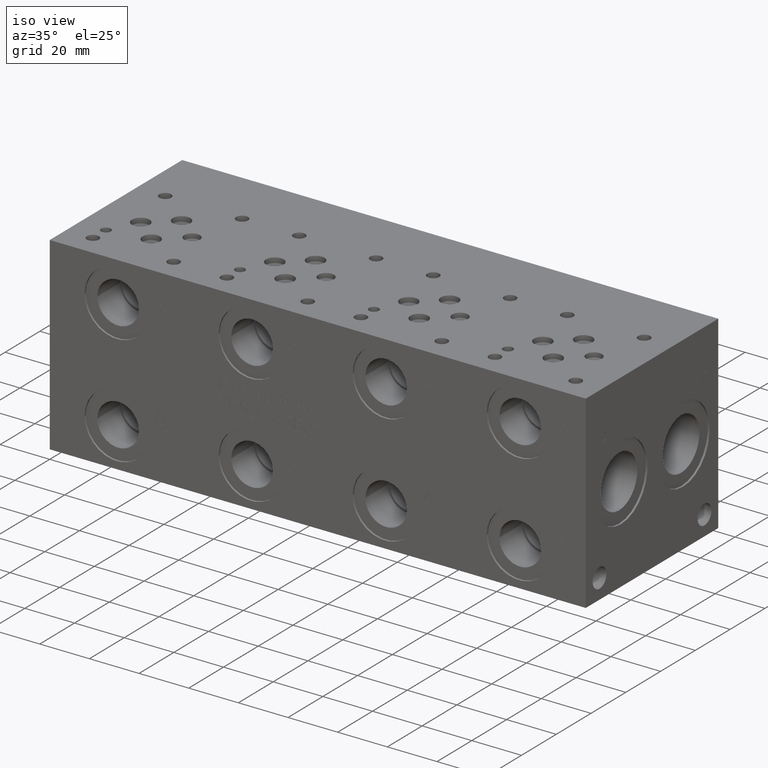
[diagram: clean part render]
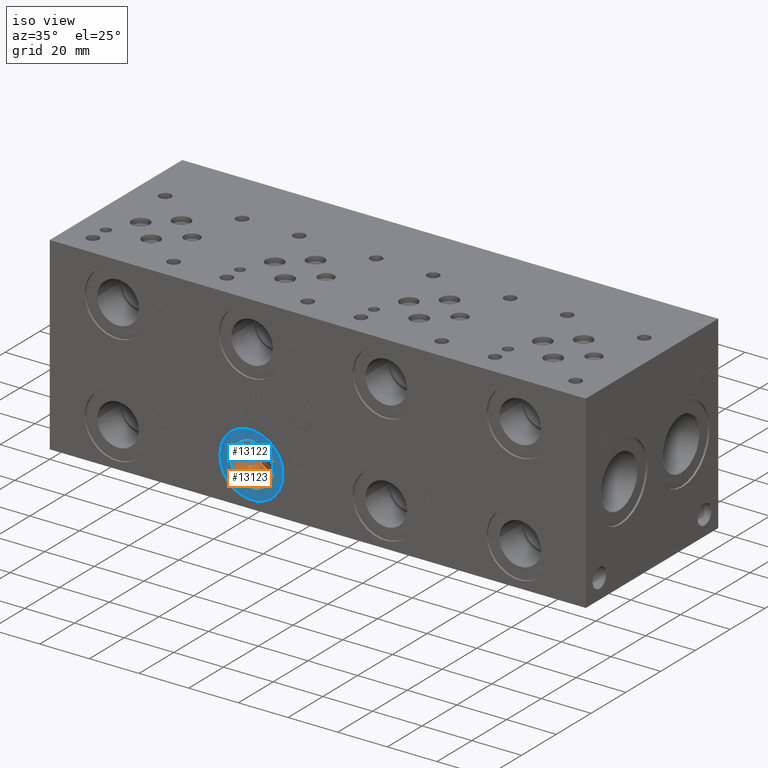
[diagram: same view with the hole feature highlighted: cylindrical wall and planar end face, labeled with their STEP entity ids]
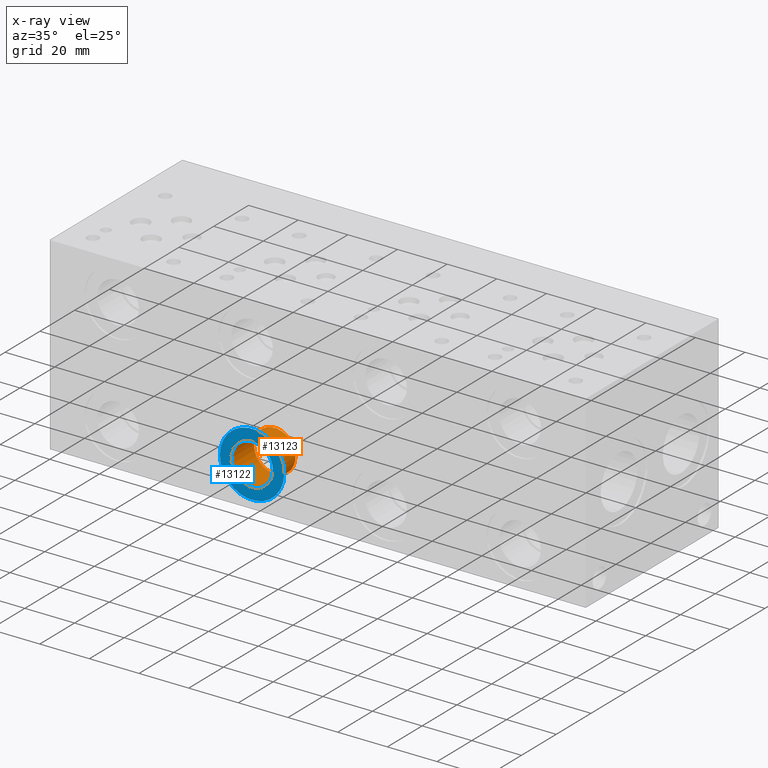
[diagram: x-ray of the same camera — body ghosted, the hole faces saturated]
A machine part, iso view. The highlighted faces form one hole feature of diameter 16.764 mm: the cylindrical wall (entity #13123, orange) and its adjacent planar end face (entity #13122, blue) — they share a circular edge in the B-rep.
The next image is the same camera in x-ray (body ghosted, the hole faces saturated) — the bore reads through the body.
Wall:
#83=CYLINDRICAL_SURFACE('',#13898,8.38200000000001);
#346=CIRCLE('',#13897,8.38200000000001);
#347=CIRCLE('',#13899,8.38200000000001);
#1584=FACE_OUTER_BOUND('',#2409,.T.);
#2409=EDGE_LOOP('',(#11210,#11211,#11212,#11213));
#3774=LINE('',#21978,#5056);
#5056=VECTOR('',#16610,8.38200000000001);
#6215=VERTEX_POINT('',#21974);
#6216=VERTEX_POINT('',#21977);
#7915=EDGE_CURVE('',#6215,#6215,#346,.T.);
#7916=EDGE_CURVE('',#6215,#6216,#3774,.T.);
#7917=EDGE_CURVE('',#6216,#6216,#347,.T.);
#11210=ORIENTED_EDGE('',*,*,#7915,.F.);
#11211=ORIENTED_EDGE('',*,*,#7916,.T.);
#11212=ORIENTED_EDGE('',*,*,#7917,.T.);
#11213=ORIENTED_EDGE('',*,*,#7916,.F.);
#13123=ADVANCED_FACE('',(#1584),#83,.F.);
#13897=AXIS2_PLACEMENT_3D('',#21975,#16606,#16607);
#13898=AXIS2_PLACEMENT_3D('',#21976,#16608,#16609);
#13899=AXIS2_PLACEMENT_3D('',#21979,#16611,#16612);
#16606=DIRECTION('center_axis',(0.,1.,0.));
#16607=DIRECTION('ref_axis',(1.,0.,0.));
#16608=DIRECTION('center_axis',(0.,1.,0.));
#16609=DIRECTION('ref_axis',(1.,0.,0.));
#16610=DIRECTION('',(0.,1.,0.));
#16611=DIRECTION('center_axis',(0.,1.,0.));
#16612=DIRECTION('ref_axis',(1.,0.,0.));
#21974=CARTESIAN_POINT('',(72.5678,0.7874,15.875));
#21975=CARTESIAN_POINT('Origin',(80.9498,0.7874,15.875));
#21976=CARTESIAN_POINT('Origin',(80.9498,7.2771,15.875));
#21977=CARTESIAN_POINT('',(72.5678,13.7668,15.875));
#21978=CARTESIAN_POINT('',(72.5678,7.2771,15.875));
#21979=CARTESIAN_POINT('Origin',(80.9498,13.7668,15.875));
End face:
#345=CIRCLE('',#13895,12.9667);
#346=CIRCLE('',#13897,8.38200000000001);
#518=FACE_BOUND('',#2408,.T.);
#1583=FACE_OUTER_BOUND('',#2407,.T.);
#2407=EDGE_LOOP('',(#11208));
#2408=EDGE_LOOP('',(#11209));
#6214=VERTEX_POINT('',#21970);
#6215=VERTEX_POINT('',#21974);
#7914=EDGE_CURVE('',#6214,#6214,#345,.T.);
#7915=EDGE_CURVE('',#6215,#6215,#346,.T.);
#11208=ORIENTED_EDGE('',*,*,#7914,.F.);
#11209=ORIENTED_EDGE('',*,*,#7915,.T.);
#11982=PLANE('',#13896);
#13122=ADVANCED_FACE('',(#1583,#518),#11982,.F.);
#13895=AXIS2_PLACEMENT_3D('',#21972,#16602,#16603);
#13896=AXIS2_PLACEMENT_3D('',#21973,#16604,#16605);
#13897=AXIS2_PLACEMENT_3D('',#21975,#16606,#16607);
#16602=DIRECTION('center_axis',(0.,1.,0.));
#16603=DIRECTION('ref_axis',(1.,0.,0.));
#16604=DIRECTION('center_axis',(0.,1.,0.));
#16605=DIRECTION('ref_axis',(0.,0.,1.));
#16606=DIRECTION('center_axis',(0.,1.,0.));
#16607=DIRECTION('ref_axis',(1.,0.,0.));
#21970=CARTESIAN_POINT('',(67.9831,0.7874,15.875));
#21972=CARTESIAN_POINT('Origin',(80.9498,0.7874,15.875));
#21973=CARTESIAN_POINT('Origin',(89.3318,0.7874,15.875));
#21974=CARTESIAN_POINT('',(72.5678,0.7874,15.875));
#21975=CARTESIAN_POINT('Origin',(80.9498,0.7874,15.875));